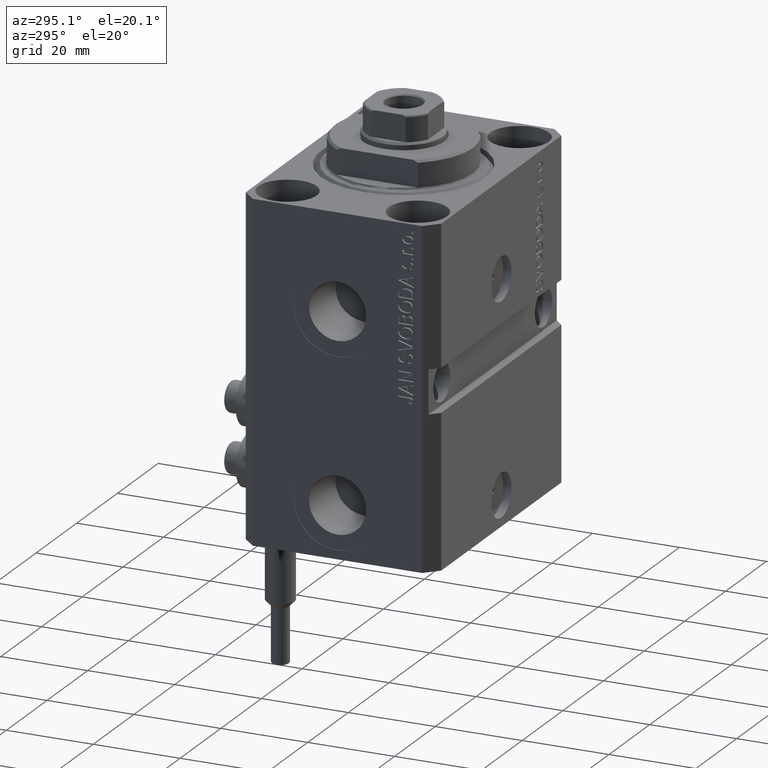
[diagram: clean part render]
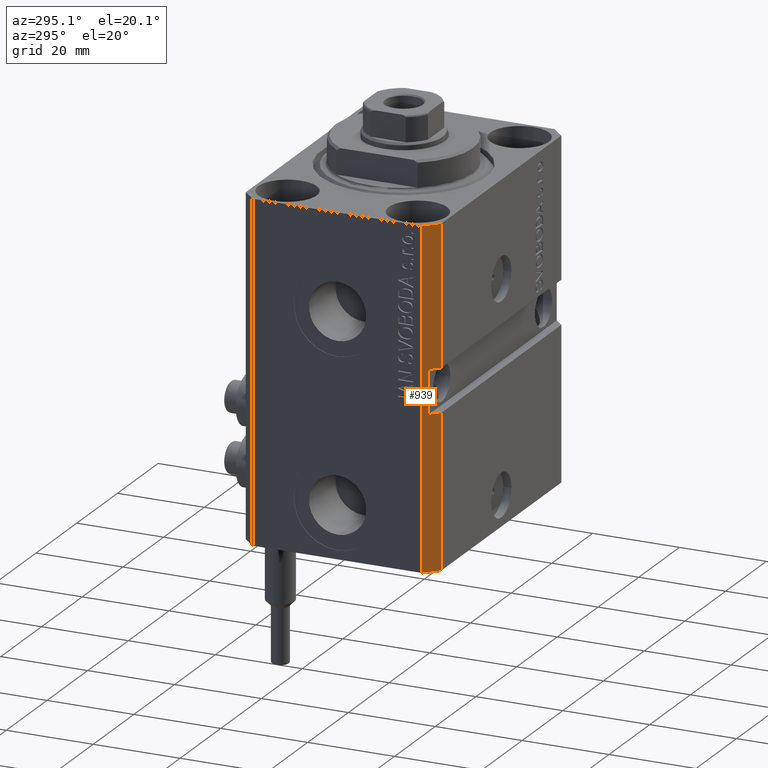
[diagram: same view with one face highlighted and labeled with its STEP entity id]
A machine part, auxiliary view. The second image highlights one B-rep face of the part: STEP entity #939.
In plain terms, the highlighted planar face has unit normal (-0.7071, -0.7071, 0).
Its self-contained STEP definition (entity closure, byte-faithful):
#355 = CARTESIAN_POINT ( 'NONE',  ( -32.49999999999650413, -19.49999999999949551, -41.99999999999999289 ) ) ;
#939 = ADVANCED_FACE ( 'NONE', ( #12154 ), #27095, .T. ) ;
#1763 = EDGE_CURVE ( 'NONE', #22078, #19610, #18217, .T. ) ;
#2812 = VECTOR ( 'NONE', #11442, 1000.000000000000000 ) ;
#3876 = EDGE_CURVE ( 'NONE', #48500, #26924, #26092, .T. ) ;
#5295 = LINE ( 'NONE', #9201, #37965 ) ;
#5697 = VECTOR ( 'NONE', #17975, 1000.000000000000114 ) ;
#6458 = DIRECTION ( 'NONE',  ( 0.000000000000000000, 0.000000000000000000, 1.000000000000000000 ) ) ;
#7733 = VERTEX_POINT ( 'NONE', #24780 ) ;
#8091 = CARTESIAN_POINT ( 'NONE',  ( -29.49999999999650058, -22.49999999999949907, -32.00000000000000000 ) ) ;
#8133 = VECTOR ( 'NONE', #41054, 1000.000000000000114 ) ;
#8474 = CARTESIAN_POINT ( 'NONE',  ( -31.49999999999650413, -20.49999999999950262, -32.00000000000000000 ) ) ;
#8475 = CARTESIAN_POINT ( 'NONE',  ( -32.49999999999650413, -19.49999999999949907, -77.00000000000000000 ) ) ;
#9201 = CARTESIAN_POINT ( 'NONE',  ( -32.49999999999650413, -19.49999999999949907, 0.000000000000000000 ) ) ;
#9733 = CARTESIAN_POINT ( 'NONE',  ( -31.49999999999650413, -20.49999999999949907, -41.99999999999999289 ) ) ;
#10629 = EDGE_CURVE ( 'NONE', #22078, #35063, #38120, .T. ) ;
#11442 = DIRECTION ( 'NONE',  ( 0.000000000000000000, 0.000000000000000000, 1.000000000000000000 ) ) ;
#12154 = FACE_OUTER_BOUND ( 'NONE', #30882, .T. ) ;
#12850 = EDGE_CURVE ( 'NONE', #7733, #14663, #36562, .T. ) ;
#12919 = VECTOR ( 'NONE', #19485, 1000.000000000000000 ) ;
#14663 = VERTEX_POINT ( 'NONE', #15753 ) ;
#14777 = ORIENTED_EDGE ( 'NONE', *, *, #3876, .F. ) ;
#15753 = CARTESIAN_POINT ( 'NONE',  ( -29.49999999999650413, -22.49999999999949907, -77.00000000000000000 ) ) ;
#15790 = EDGE_CURVE ( 'NONE', #7733, #18626, #18213, .T. ) ;
#17975 = DIRECTION ( 'NONE',  ( -0.7071067811865474617, 0.7071067811865474617, 7.548521435980497974E-17 ) ) ;
#18213 = LINE ( 'NONE', #47643, #44400 ) ;
#18217 = LINE ( 'NONE', #44210, #5697 ) ;
#18626 = VERTEX_POINT ( 'NONE', #38810 ) ;
#19256 = VECTOR ( 'NONE', #25186, 1000.000000000000000 ) ;
#19485 = DIRECTION ( 'NONE',  ( 0.000000000000000000, 0.000000000000000000, 1.000000000000000000 ) ) ;
#19610 = VERTEX_POINT ( 'NONE', #8474 ) ;
#22078 = VERTEX_POINT ( 'NONE', #8091 ) ;
#22214 = LINE ( 'NONE', #45016, #2812 ) ;
#23141 = ORIENTED_EDGE ( 'NONE', *, *, #29124, .T. ) ;
#23667 = DIRECTION ( 'NONE',  ( 0.7071067811865474617, -0.7071067811865474617, 0.000000000000000000 ) ) ;
#24599 = CARTESIAN_POINT ( 'NONE',  ( -29.49999999999650413, -22.49999999999949907, 0.000000000000000000 ) ) ;
#24780 = CARTESIAN_POINT ( 'NONE',  ( -32.49999999999650413, -19.49999999999949907, -77.00000000000000000 ) ) ;
#25186 = DIRECTION ( 'NONE',  ( 0.000000000000000000, 0.000000000000000000, 1.000000000000000000 ) ) ;
#26092 = LINE ( 'NONE', #355, #8133 ) ;
#26924 = VERTEX_POINT ( 'NONE', #36348 ) ;
#27095 = PLANE ( 'NONE',  #45617 ) ;
#27804 = DIRECTION ( 'NONE',  ( -0.7071067811865475727, -0.7071067811865475727, 0.000000000000000000 ) ) ;
#29105 = CARTESIAN_POINT ( 'NONE',  ( -29.49999999999650413, -22.49999999999949907, -77.00000000000000000 ) ) ;
#29124 = EDGE_CURVE ( 'NONE', #14663, #26924, #44058, .T. ) ;
#30660 = EDGE_CURVE ( 'NONE', #48500, #19610, #22214, .T. ) ;
#30882 = EDGE_LOOP ( 'NONE', ( #14777, #31797, #36988, #35951, #33998, #39634, #32786, #23141 ) ) ;
#31603 = EDGE_CURVE ( 'NONE', #18626, #35063, #5295, .T. ) ;
#31797 = ORIENTED_EDGE ( 'NONE', *, *, #30660, .T. ) ;
#31904 = CARTESIAN_POINT ( 'NONE',  ( -32.49999999999650413, -19.49999999999949907, -77.00000000000000000 ) ) ;
#32786 = ORIENTED_EDGE ( 'NONE', *, *, #12850, .T. ) ;
#33998 = ORIENTED_EDGE ( 'NONE', *, *, #31603, .F. ) ;
#34662 = CARTESIAN_POINT ( 'NONE',  ( -29.49999999999650413, -22.49999999999949907, -77.00000000000000000 ) ) ;
#35063 = VERTEX_POINT ( 'NONE', #24599 ) ;
#35951 = ORIENTED_EDGE ( 'NONE', *, *, #10629, .T. ) ;
#36348 = CARTESIAN_POINT ( 'NONE',  ( -29.49999999999650413, -22.49999999999949907, -41.99999999999999289 ) ) ;
#36562 = LINE ( 'NONE', #31904, #42715 ) ;
#36988 = ORIENTED_EDGE ( 'NONE', *, *, #1763, .F. ) ;
#37965 = VECTOR ( 'NONE', #23667, 1000.000000000000114 ) ;
#38120 = LINE ( 'NONE', #34662, #12919 ) ;
#38810 = CARTESIAN_POINT ( 'NONE',  ( -32.49999999999650413, -19.49999999999949907, 0.000000000000000000 ) ) ;
#39634 = ORIENTED_EDGE ( 'NONE', *, *, #15790, .F. ) ;
#41054 = DIRECTION ( 'NONE',  ( 0.7071067811865474617, -0.7071067811865474617, 7.548521435980497974E-17 ) ) ;
#42715 = VECTOR ( 'NONE', #47836, 1000.000000000000114 ) ;
#44058 = LINE ( 'NONE', #29105, #19256 ) ;
#44210 = CARTESIAN_POINT ( 'NONE',  ( -32.49999999999650413, -19.49999999999950262, -32.00000000000000000 ) ) ;
#44400 = VECTOR ( 'NONE', #6458, 1000.000000000000000 ) ;
#45016 = CARTESIAN_POINT ( 'NONE',  ( -31.49999999999650413, -20.49999999999950262, -77.00000000000000000 ) ) ;
#45617 = AXIS2_PLACEMENT_3D ( 'NONE', #8475, #27804, #47405 ) ;
#47405 = DIRECTION ( 'NONE',  ( 0.7071067811865474617, -0.7071067811865474617, 0.000000000000000000 ) ) ;
#47643 = CARTESIAN_POINT ( 'NONE',  ( -32.49999999999650413, -19.49999999999949907, -77.00000000000000000 ) ) ;
#47836 = DIRECTION ( 'NONE',  ( 0.7071067811865474617, -0.7071067811865474617, 0.000000000000000000 ) ) ;
#48500 = VERTEX_POINT ( 'NONE', #9733 ) ;